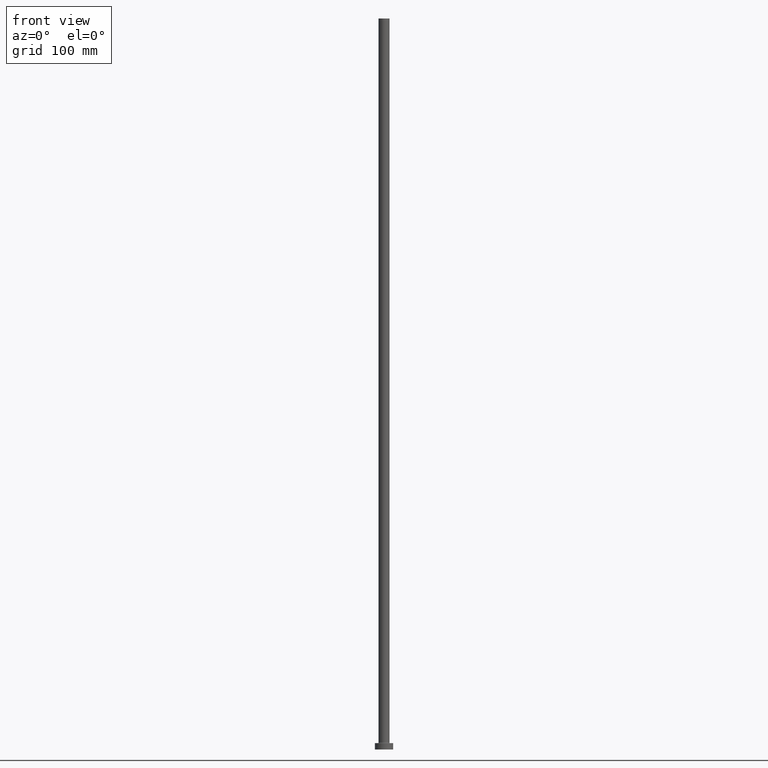
[diagram: clean part render]
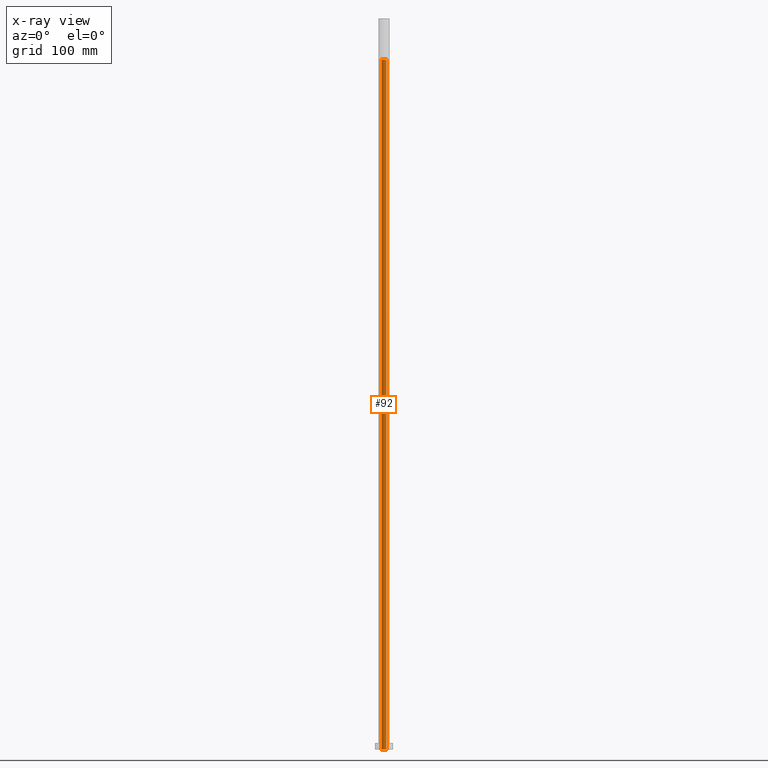
[diagram: x-ray — body ghosted, one internal face saturated and labeled with its STEP entity id]
A machine part, front view, then the same camera in x-ray: the body is ghosted and one INTERNAL B-rep face — a face not visible from any outside direction — is saturated and labeled: STEP entity #92.
In plain terms, the highlighted cylindrical surface (edge-blend (fillet) strip) has radius 2.65 mm, axis along (0, 0, -1).
Its self-contained STEP definition (entity closure, byte-faithful):
#13 = DIRECTION ( 'NONE',  ( -1.000000000000000000, 0.000000000000000000, 0.000000000000000000 ) ) ;
#53 = CYLINDRICAL_SURFACE ( 'NONE', #88, 2.649999999999999911 ) ;
#59 = CARTESIAN_POINT ( 'NONE',  ( 2.649999999999999911, 3.245314017740485962E-16, 0.000000000000000000 ) ) ;
#68 = VERTEX_POINT ( 'NONE', #124 ) ;
#78 = CARTESIAN_POINT ( 'NONE',  ( 2.649999999999999911, 3.245314017740485962E-16, 755.0000000000000000 ) ) ;
#88 = AXIS2_PLACEMENT_3D ( 'NONE', #215, #148, #13 ) ;
#92 = ADVANCED_FACE ( 'NONE', ( #254 ), #53, .F. ) ;
#97 = LINE ( 'NONE', #228, #397 ) ;
#98 = CIRCLE ( 'NONE', #350, 2.649999999999999911 ) ;
#115 = CIRCLE ( 'NONE', #324, 2.649999999999999911 ) ;
#124 = CARTESIAN_POINT ( 'NONE',  ( -2.649999999999999911, 0.000000000000000000, 0.000000000000000000 ) ) ;
#133 = VERTEX_POINT ( 'NONE', #389 ) ;
#148 = DIRECTION ( 'NONE',  ( 0.000000000000000000, 0.000000000000000000, -1.000000000000000000 ) ) ;
#155 = DIRECTION ( 'NONE',  ( 0.000000000000000000, 0.000000000000000000, -1.000000000000000000 ) ) ;
#175 = EDGE_CURVE ( 'NONE', #133, #327, #115, .T. ) ;
#186 = EDGE_LOOP ( 'NONE', ( #416, #236, #343, #206 ) ) ;
#194 = DIRECTION ( 'NONE',  ( 0.000000000000000000, 0.000000000000000000, -1.000000000000000000 ) ) ;
#197 = CARTESIAN_POINT ( 'NONE',  ( 0.000000000000000000, 0.000000000000000000, 0.000000000000000000 ) ) ;
#206 = ORIENTED_EDGE ( 'NONE', *, *, #374, .F. ) ;
#215 = CARTESIAN_POINT ( 'NONE',  ( 0.000000000000000000, 0.000000000000000000, 762.4953318805775098 ) ) ;
#228 = CARTESIAN_POINT ( 'NONE',  ( 2.649999999999999911, 3.245314017740485962E-16, 762.4953318805775098 ) ) ;
#236 = ORIENTED_EDGE ( 'NONE', *, *, #429, .T. ) ;
#253 = VECTOR ( 'NONE', #155, 1000.000000000000000 ) ;
#254 = FACE_OUTER_BOUND ( 'NONE', #186, .T. ) ;
#282 = DIRECTION ( 'NONE',  ( 0.000000000000000000, 0.000000000000000000, 1.000000000000000000 ) ) ;
#297 = DIRECTION ( 'NONE',  ( -0.000000000000000000, -0.000000000000000000, -1.000000000000000000 ) ) ;
#301 = LINE ( 'NONE', #449, #253 ) ;
#324 = AXIS2_PLACEMENT_3D ( 'NONE', #398, #282, #435 ) ;
#327 = VERTEX_POINT ( 'NONE', #78 ) ;
#343 = ORIENTED_EDGE ( 'NONE', *, *, #423, .T. ) ;
#350 = AXIS2_PLACEMENT_3D ( 'NONE', #197, #297, #442 ) ;
#374 = EDGE_CURVE ( 'NONE', #133, #68, #301, .T. ) ;
#389 = CARTESIAN_POINT ( 'NONE',  ( -2.649999999999999911, 0.000000000000000000, 755.0000000000000000 ) ) ;
#397 = VECTOR ( 'NONE', #194, 1000.000000000000000 ) ;
#398 = CARTESIAN_POINT ( 'NONE',  ( 0.000000000000000000, 0.000000000000000000, 755.0000000000000000 ) ) ;
#409 = VERTEX_POINT ( 'NONE', #59 ) ;
#416 = ORIENTED_EDGE ( 'NONE', *, *, #175, .T. ) ;
#423 = EDGE_CURVE ( 'NONE', #409, #68, #98, .T. ) ;
#429 = EDGE_CURVE ( 'NONE', #327, #409, #97, .T. ) ;
#435 = DIRECTION ( 'NONE',  ( 1.000000000000000000, 0.000000000000000000, 0.000000000000000000 ) ) ;
#442 = DIRECTION ( 'NONE',  ( 1.000000000000000000, 0.000000000000000000, 0.000000000000000000 ) ) ;
#449 = CARTESIAN_POINT ( 'NONE',  ( -2.649999999999999911, 0.000000000000000000, 762.4953318805775098 ) ) ;